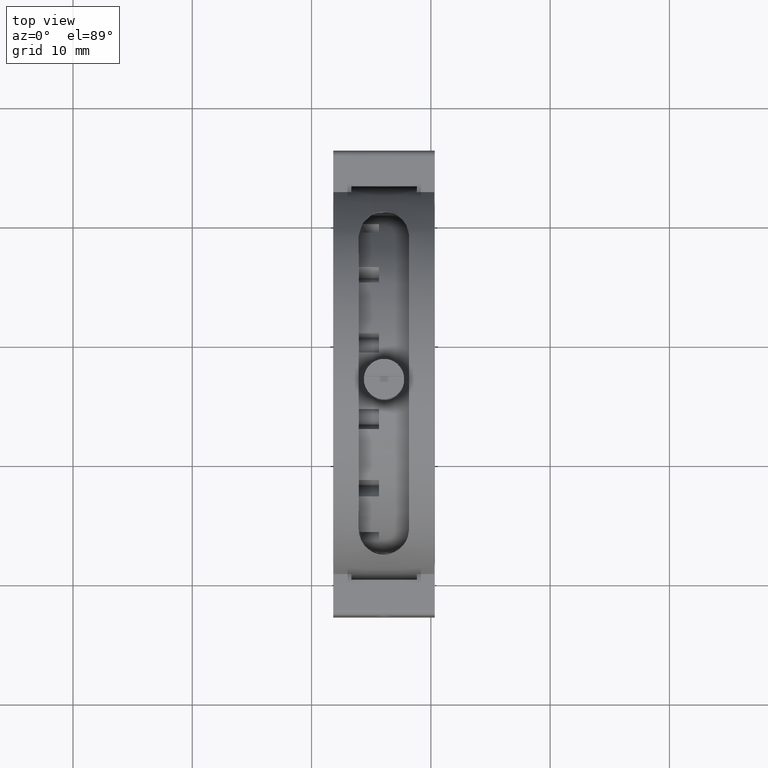
[diagram: clean part render]
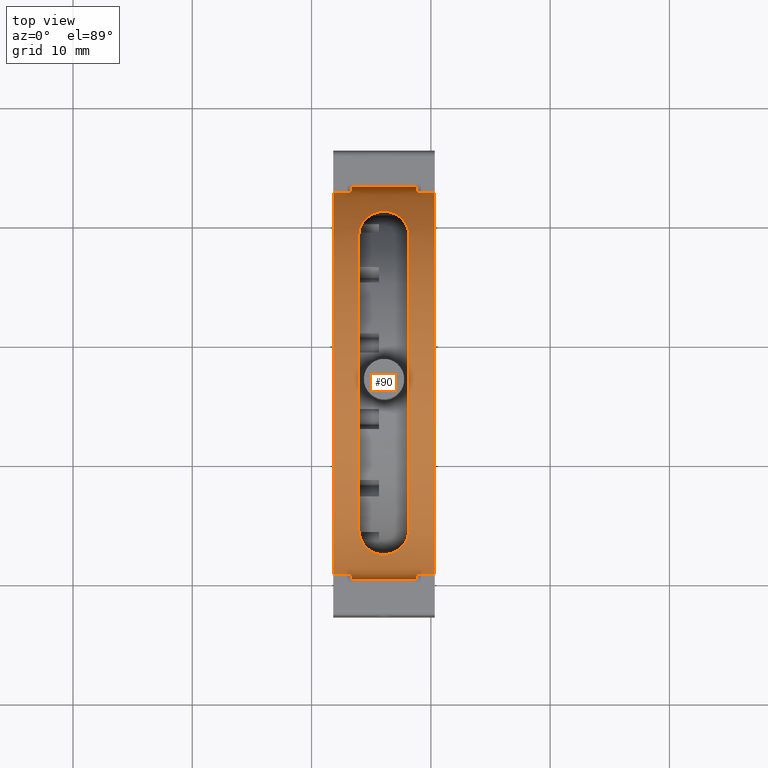
[diagram: same view with one face highlighted and labeled with its STEP entity id]
A machine part, top view. The second image highlights one B-rep face of the part: STEP entity #90.
In plain terms, the highlighted face is a freeform B-spline surface patch.
Its self-contained STEP definition (entity closure, byte-faithful):
#44=FACE_BOUND('',#755,.T.);
#90=ADVANCED_FACE('',(#412,#44),#5506,.T.);
#412=FACE_OUTER_BOUND('',#754,.T.);
#754=EDGE_LOOP('',(#1305,#1306,#1307,#1308,#1309,#1310,#1311,#1312,#1313,
#1314,#1315,#1316));
#755=EDGE_LOOP('',(#1317,#1318,#1319,#1320,#1321,#1322));
#1305=ORIENTED_EDGE('',*,*,#2918,.T.);
#1306=ORIENTED_EDGE('',*,*,#3012,.T.);
#1307=ORIENTED_EDGE('',*,*,#2933,.T.);
#1308=ORIENTED_EDGE('',*,*,#3013,.T.);
#1309=ORIENTED_EDGE('',*,*,#2965,.T.);
#1310=ORIENTED_EDGE('',*,*,#3014,.F.);
#1311=ORIENTED_EDGE('',*,*,#2929,.T.);
#1312=ORIENTED_EDGE('',*,*,#3015,.T.);
#1313=ORIENTED_EDGE('',*,*,#2922,.T.);
#1314=ORIENTED_EDGE('',*,*,#3016,.F.);
#1315=ORIENTED_EDGE('',*,*,#3011,.T.);
#1316=ORIENTED_EDGE('',*,*,#3017,.T.);
#1317=ORIENTED_EDGE('',*,*,#3023,.T.);
#1318=ORIENTED_EDGE('',*,*,#3018,.T.);
#1319=ORIENTED_EDGE('',*,*,#3019,.T.);
#1320=ORIENTED_EDGE('',*,*,#3020,.T.);
#1321=ORIENTED_EDGE('',*,*,#3021,.T.);
#1322=ORIENTED_EDGE('',*,*,#3022,.T.);
#2918=EDGE_CURVE('',#4945,#4944,#4385,.T.);
#2922=EDGE_CURVE('',#4949,#4948,#4389,.T.);
#2929=EDGE_CURVE('',#4955,#4954,#4396,.T.);
#2933=EDGE_CURVE('',#4959,#4958,#4400,.T.);
#2965=EDGE_CURVE('',#4965,#4964,#4424,.T.);
#3011=EDGE_CURVE('',#5008,#4966,#4442,.T.);
#3012=EDGE_CURVE('',#4944,#4959,#3957,.T.);
#3013=EDGE_CURVE('',#4958,#4965,#3958,.T.);
#3014=EDGE_CURVE('',#4955,#4964,#3959,.T.);
#3015=EDGE_CURVE('',#4954,#4949,#3960,.T.);
#3016=EDGE_CURVE('',#5008,#4948,#3961,.T.);
#3017=EDGE_CURVE('',#4966,#4945,#3962,.T.);
#3018=EDGE_CURVE('',#5040,#5041,#3963,.T.);
#3019=EDGE_CURVE('',#5041,#5042,#4443,.T.);
#3020=EDGE_CURVE('',#5042,#5043,#4444,.T.);
#3021=EDGE_CURVE('',#5043,#5044,#3964,.T.);
#3022=EDGE_CURVE('',#5044,#5045,#4445,.T.);
#3023=EDGE_CURVE('',#5045,#5040,#4446,.T.);
#3957=(
BOUNDED_CURVE()
B_SPLINE_CURVE(2,(#9861,#9862,#9863,#9864,#9865),.UNSPECIFIED.,.F.,.F.)
B_SPLINE_CURVE_WITH_KNOTS((3,2,3),(-43.7557715954461,-21.877885797723,0.),
 .UNSPECIFIED.)
CURVE()
GEOMETRIC_REPRESENTATION_ITEM()
RATIONAL_B_SPLINE_CURVE((1.,0.788170109311512,1.,0.788170109311512,1.))
REPRESENTATION_ITEM('')
);
#3958=(
BOUNDED_CURVE()
B_SPLINE_CURVE(2,(#9866,#9867,#9868),.UNSPECIFIED.,.F.,.F.)
B_SPLINE_CURVE_WITH_KNOTS((3,3),(0.,4.04025359439275),.UNSPECIFIED.)
CURVE()
GEOMETRIC_REPRESENTATION_ITEM()
RATIONAL_B_SPLINE_CURVE((1.,0.992514568911957,1.))
REPRESENTATION_ITEM('')
);
#3959=(
BOUNDED_CURVE()
B_SPLINE_CURVE(2,(#9869,#9870,#9871),.UNSPECIFIED.,.F.,.F.)
B_SPLINE_CURVE_WITH_KNOTS((3,3),(-4.04025359439275,0.),.UNSPECIFIED.)
CURVE()
GEOMETRIC_REPRESENTATION_ITEM()
RATIONAL_B_SPLINE_CURVE((1.,0.992514568911957,1.))
REPRESENTATION_ITEM('')
);
#3960=(
BOUNDED_CURVE()
B_SPLINE_CURVE(2,(#9872,#9873,#9874,#9875,#9876),.UNSPECIFIED.,.F.,.F.)
B_SPLINE_CURVE_WITH_KNOTS((3,2,3),(-43.7557715954461,-21.877885797723,0.),
 .UNSPECIFIED.)
CURVE()
GEOMETRIC_REPRESENTATION_ITEM()
RATIONAL_B_SPLINE_CURVE((1.,0.788170109311512,1.,0.788170109311512,1.))
REPRESENTATION_ITEM('')
);
#3961=(
BOUNDED_CURVE()
B_SPLINE_CURVE(2,(#9877,#9878,#9879),.UNSPECIFIED.,.F.,.F.)
B_SPLINE_CURVE_WITH_KNOTS((3,3),(-4.04025359439275,0.),.UNSPECIFIED.)
CURVE()
GEOMETRIC_REPRESENTATION_ITEM()
RATIONAL_B_SPLINE_CURVE((1.,0.992514568911957,1.))
REPRESENTATION_ITEM('')
);
#3962=(
BOUNDED_CURVE()
B_SPLINE_CURVE(2,(#9880,#9881,#9882),.UNSPECIFIED.,.F.,.F.)
B_SPLINE_CURVE_WITH_KNOTS((3,3),(0.,4.04025359439275),.UNSPECIFIED.)
CURVE()
GEOMETRIC_REPRESENTATION_ITEM()
RATIONAL_B_SPLINE_CURVE((1.,0.992514568911958,1.))
REPRESENTATION_ITEM('')
);
#3963=(
BOUNDED_CURVE()
B_SPLINE_CURVE(2,(#9883,#9884,#9885,#9886,#9887),.UNSPECIFIED.,.F.,.F.)
B_SPLINE_CURVE_WITH_KNOTS((3,2,3),(0.,13.8339829053415,27.6679658106831),
 .UNSPECIFIED.)
CURVE()
GEOMETRIC_REPRESENTATION_ITEM()
RATIONAL_B_SPLINE_CURVE((1.,0.913410133544442,1.,0.913410133544442,1.))
REPRESENTATION_ITEM('')
);
#3964=(
BOUNDED_CURVE()
B_SPLINE_CURVE(2,(#9916,#9917,#9918,#9919,#9920),.UNSPECIFIED.,.F.,.F.)
B_SPLINE_CURVE_WITH_KNOTS((3,2,3),(0.,13.8339829053415,27.6679658106831),
 .UNSPECIFIED.)
CURVE()
GEOMETRIC_REPRESENTATION_ITEM()
RATIONAL_B_SPLINE_CURVE((1.,0.913410133544442,1.,0.913410133544442,1.))
REPRESENTATION_ITEM('')
);
#4385=B_SPLINE_CURVE_WITH_KNOTS('',1,(#9605,#9606),.UNSPECIFIED.,.F.,.F.,
(2,2),(0.,1.49615384615385),.UNSPECIFIED.);
#4389=B_SPLINE_CURVE_WITH_KNOTS('',1,(#9613,#9614),.UNSPECIFIED.,.F.,.F.,
(2,2),(0.,1.46538461538461),.UNSPECIFIED.);
#4396=B_SPLINE_CURVE_WITH_KNOTS('',1,(#9627,#9628),.UNSPECIFIED.,.F.,.F.,
(2,2),(0.,1.46538461538462),.UNSPECIFIED.);
#4400=B_SPLINE_CURVE_WITH_KNOTS('',1,(#9635,#9636),.UNSPECIFIED.,.F.,.F.,
(2,2),(0.,1.49615384615385),.UNSPECIFIED.);
#4424=B_SPLINE_CURVE_WITH_KNOTS('',1,(#9707,#9708),.UNSPECIFIED.,.F.,.F.,
(2,2),(-5.5,0.),.UNSPECIFIED.);
#4442=B_SPLINE_CURVE_WITH_KNOTS('',1,(#9859,#9860),.UNSPECIFIED.,.F.,.F.,
(2,2),(0.,5.5),.UNSPECIFIED.);
#4443=B_SPLINE_CURVE_WITH_KNOTS('',3,(#9888,#9889,#9890,#9891,#9892,#9893,
#9894,#9895,#9896,#9897,#9898,#9899,#9900,#9901),.UNSPECIFIED.,.F.,.F.,
(4,2,2,2,2,2,4),(-0.743787723429557,-0.735675025717153,-0.727562328004749,
-0.711336932579941,-0.678994371539949,-0.614309629255072,-0.484859846165475),
 .UNSPECIFIED.);
#4444=B_SPLINE_CURVE_WITH_KNOTS('',3,(#9902,#9903,#9904,#9905,#9906,#9907,
#9908,#9909,#9910,#9911,#9912,#9913,#9914,#9915),.UNSPECIFIED.,.F.,.F.,
(4,2,2,2,2,2,4),(-0.484859846165475,-0.355410438512763,-0.290724871441666,
-0.258382341752588,-0.242157155326991,-0.234044562114192,-0.225931968901393),
 .UNSPECIFIED.);
#4445=B_SPLINE_CURVE_WITH_KNOTS('',3,(#9921,#9922,#9923,#9924,#9925,#9926,
#9927,#9928,#9929,#9930,#9931,#9932,#9933,#9934),.UNSPECIFIED.,.F.,.F.,
(4,2,2,2,2,2,4),(-0.258927877264082,-0.250815179551674,-0.242702481839266,
-0.226477086414449,-0.194134525374459,-0.129449783089587,0.),
 .UNSPECIFIED.);
#4446=B_SPLINE_CURVE_WITH_KNOTS('',3,(#9935,#9936,#9937,#9938,#9939,#9940,
#9941,#9942,#9943,#9944,#9945,#9946,#9947,#9948),.UNSPECIFIED.,.F.,.F.,
(4,2,2,2,2,2,4),(0.,0.12944940765271,0.194134974723805,0.226477504412881,
0.242702690838482,0.250815284051282,0.258927877264082),.UNSPECIFIED.);
#4944=VERTEX_POINT('',#9017);
#4945=VERTEX_POINT('',#9018);
#4948=VERTEX_POINT('',#9021);
#4949=VERTEX_POINT('',#9022);
#4954=VERTEX_POINT('',#9027);
#4955=VERTEX_POINT('',#9028);
#4958=VERTEX_POINT('',#9031);
#4959=VERTEX_POINT('',#9032);
#4964=VERTEX_POINT('',#9037);
#4965=VERTEX_POINT('',#9038);
#4966=VERTEX_POINT('',#9039);
#5008=VERTEX_POINT('',#9081);
#5040=VERTEX_POINT('',#9113);
#5041=VERTEX_POINT('',#9114);
#5042=VERTEX_POINT('',#9115);
#5043=VERTEX_POINT('',#9116);
#5044=VERTEX_POINT('',#9117);
#5045=VERTEX_POINT('',#9118);
#5506=(
BOUNDED_SURFACE()
B_SPLINE_SURFACE(2,1,((#6558,#6559),(#6560,#6561),(#6562,#6563),(#6564,
#6565),(#6566,#6567),(#6568,#6569),(#6570,#6571),(#6572,#6573),(#6574,#6575)),
 .UNSPECIFIED.,.T.,.F.,.F.)
B_SPLINE_SURFACE_WITH_KNOTS((3,2,2,2,3),(2,2),(0.,1.5707963267949,3.14159265358979,
4.71238898038469,6.28318530717959),(0.,10.3938461538462),.UNSPECIFIED.)
GEOMETRIC_REPRESENTATION_ITEM()
RATIONAL_B_SPLINE_SURFACE(((1.,1.),(0.707106781186548,0.707106781186548),
(1.,1.),(0.707106781186548,0.707106781186548),(1.,1.),(0.707106781186548,
0.707106781186548),(1.,1.),(0.707106781186548,0.707106781186548),(1.,1.)))
REPRESENTATION_ITEM('')
SURFACE()
);
#6558=CARTESIAN_POINT('',(21.2546153846154,16.5,-13.9767355977011));
#6559=CARTESIAN_POINT('',(10.8607692307692,16.5,-13.9767355977011));
#6560=CARTESIAN_POINT('',(21.2546153846154,3.5527136788005E-15,-13.9767355977011));
#6561=CARTESIAN_POINT('',(10.8607692307692,3.5527136788005E-15,-13.9767355977011));
#6562=CARTESIAN_POINT('',(21.2546153846154,0.,2.52326440229894));
#6563=CARTESIAN_POINT('',(10.8607692307692,0.,2.52326440229894));
#6564=CARTESIAN_POINT('',(21.2546153846154,0.,19.0232644022989));
#6565=CARTESIAN_POINT('',(10.8607692307692,0.,19.0232644022989));
#6566=CARTESIAN_POINT('',(21.2546153846154,16.5,19.0232644022989));
#6567=CARTESIAN_POINT('',(10.8607692307692,16.5,19.0232644022989));
#6568=CARTESIAN_POINT('',(21.2546153846154,33.,19.0232644022989));
#6569=CARTESIAN_POINT('',(10.8607692307692,33.,19.0232644022989));
#6570=CARTESIAN_POINT('',(21.2546153846154,33.,2.52326440229895));
#6571=CARTESIAN_POINT('',(10.8607692307692,33.,2.52326440229895));
#6572=CARTESIAN_POINT('',(21.2546153846154,33.,-13.976735597701));
#6573=CARTESIAN_POINT('',(10.8607692307692,33.,-13.976735597701));
#6574=CARTESIAN_POINT('',(21.2546153846154,16.5,-13.9767355977011));
#6575=CARTESIAN_POINT('',(10.8607692307692,16.5,-13.9767355977011));
#9017=CARTESIAN_POINT('',(11.826923076923,32.5078105935821,6.52326440229894));
#9018=CARTESIAN_POINT('',(13.3230769230769,32.5078105935821,6.52326440229894));
#9021=CARTESIAN_POINT('',(18.8230769230769,32.5078105935821,6.52326440229895));
#9022=CARTESIAN_POINT('',(20.2884615384615,32.5078105935821,6.52326440229895));
#9027=CARTESIAN_POINT('',(20.2884615384615,0.492189406417881,6.52326440229894));
#9028=CARTESIAN_POINT('',(18.8230769230769,0.49218940641788,6.52326440229894));
#9031=CARTESIAN_POINT('',(13.3230769230769,0.492189406417879,6.52326440229894));
#9032=CARTESIAN_POINT('',(11.826923076923,0.492189406417883,6.52326440229894));
#9037=CARTESIAN_POINT('',(18.8230769230769,5.47023555514279E-15,2.52326440229894));
#9038=CARTESIAN_POINT('',(13.3230769230769,5.73111696057652E-15,2.52326440229894));
#9039=CARTESIAN_POINT('',(13.3230769230769,33.,2.52326440229894));
#9081=CARTESIAN_POINT('',(18.8230769230769,33.,2.52326440229894));
#9113=CARTESIAN_POINT('',(13.9423076923077,4.14500821754125,13.4596339121215));
#9114=CARTESIAN_POINT('',(13.9423076923077,28.6827218702852,13.6512151494615));
#9115=CARTESIAN_POINT('',(16.0576923076923,30.8210708585029,10.7181975603997));
#9116=CARTESIAN_POINT('',(18.1730769230769,28.6827218702852,13.6512151494615));
#9117=CARTESIAN_POINT('',(18.1730769230769,4.14500821754125,13.4596339121215));
#9118=CARTESIAN_POINT('',(16.0576923076923,2.05271692080312,10.4935850752425));
#9605=CARTESIAN_POINT('',(13.3230769230769,32.5078105935821,6.52326440229894));
#9606=CARTESIAN_POINT('',(11.826923076923,32.5078105935821,6.52326440229894));
#9613=CARTESIAN_POINT('',(20.2884615384615,32.5078105935821,6.52326440229895));
#9614=CARTESIAN_POINT('',(18.8230769230769,32.5078105935821,6.52326440229895));
#9627=CARTESIAN_POINT('',(18.8230769230769,0.49218940641788,6.52326440229894));
#9628=CARTESIAN_POINT('',(20.2884615384615,0.492189406417881,6.52326440229894));
#9635=CARTESIAN_POINT('',(11.826923076923,0.492189406417883,6.52326440229894));
#9636=CARTESIAN_POINT('',(13.3230769230769,0.492189406417879,6.52326440229894));
#9707=CARTESIAN_POINT('',(13.3230769230769,5.73111696057652E-15,2.52326440229894));
#9708=CARTESIAN_POINT('',(18.8230769230769,5.47023555514279E-15,2.52326440229894));
#9859=CARTESIAN_POINT('',(18.8230769230769,33.,2.52326440229894));
#9860=CARTESIAN_POINT('',(13.3230769230769,33.,2.52326440229894));
#9861=CARTESIAN_POINT('',(11.826923076923,32.5078105935821,6.52326440229895));
#9862=CARTESIAN_POINT('',(11.826923076923,29.38433535581,19.0232644022989));
#9863=CARTESIAN_POINT('',(11.826923076923,16.5,19.0232644022989));
#9864=CARTESIAN_POINT('',(11.826923076923,3.61566464419,19.0232644022989));
#9865=CARTESIAN_POINT('',(11.8269230769231,0.492189406417886,6.52326440229894));
#9866=CARTESIAN_POINT('',(13.3230769230769,0.492189406417875,6.52326440229894));
#9867=CARTESIAN_POINT('',(13.3230769230769,-9.6059448622706E-15,4.55354570377269));
#9868=CARTESIAN_POINT('',(13.3230769230769,5.55111512312578E-15,2.52326440229894));
#9869=CARTESIAN_POINT('',(18.8230769230769,0.492189406417879,6.52326440229894));
#9870=CARTESIAN_POINT('',(18.8230769230769,-2.50285899613746E-15,4.55354570377269));
#9871=CARTESIAN_POINT('',(18.8230769230769,4.88498130835069E-15,2.52326440229894));
#9872=CARTESIAN_POINT('',(20.2884615384615,0.492189406417886,6.52326440229894));
#9873=CARTESIAN_POINT('',(20.2884615384615,3.61566464419001,19.0232644022989));
#9874=CARTESIAN_POINT('',(20.2884615384615,16.5,19.0232644022989));
#9875=CARTESIAN_POINT('',(20.2884615384615,29.38433535581,19.0232644022989));
#9876=CARTESIAN_POINT('',(20.2884615384615,32.5078105935821,6.52326440229895));
#9877=CARTESIAN_POINT('',(18.8230769230769,33.,2.52326440229894));
#9878=CARTESIAN_POINT('',(18.8230769230769,33.,4.55354570377269));
#9879=CARTESIAN_POINT('',(18.8230769230769,32.5078105935821,6.52326440229895));
#9880=CARTESIAN_POINT('',(13.3230769230769,33.,2.52326440229894));
#9881=CARTESIAN_POINT('',(13.3230769230769,33.,4.55354570377269));
#9882=CARTESIAN_POINT('',(13.3230769230769,32.5078105935821,6.52326440229894));
#9883=CARTESIAN_POINT('',(13.9423076923077,4.14500821754125,13.4596339121215));
#9884=CARTESIAN_POINT('',(13.9423076923077,9.01855253590675,18.9653549789503));
#9885=CARTESIAN_POINT('',(13.9423076923077,16.3711781335128,19.0227615136268));
#9886=CARTESIAN_POINT('',(13.9423076923077,23.7238037311188,19.0801680483032));
#9887=CARTESIAN_POINT('',(13.9423076923077,28.6827218702852,13.6512151494615));
#9888=CARTESIAN_POINT('',(13.9423076923077,28.6827218702852,13.6512151494615));
#9889=CARTESIAN_POINT('',(13.9423076923077,28.9609971286799,13.3465633628539));
#9890=CARTESIAN_POINT('',(13.9697398506385,29.0368590008087,13.251709914202));
#9891=CARTESIAN_POINT('',(14.0108898136201,29.2293098044846,13.0226476513037));
#9892=CARTESIAN_POINT('',(14.0322868524658,29.301738976914,12.933648186254));
#9893=CARTESIAN_POINT('',(14.0969115555564,29.4952143340237,12.69267194954));
#9894=CARTESIAN_POINT('',(14.1409169685126,29.5911087885584,12.5678020040475));
#9895=CARTESIAN_POINT('',(14.2728626648993,29.8450601307904,12.2309057609646));
#9896=CARTESIAN_POINT('',(14.3614417733405,29.9667819980351,12.0589763508796));
#9897=CARTESIAN_POINT('',(14.6278454477819,30.2814765577493,11.603847053532));
#9898=CARTESIAN_POINT('',(14.8061720334941,30.4185206071961,11.3869818629558));
#9899=CARTESIAN_POINT('',(15.3419895136578,30.7374996343782,10.8723133779348));
#9900=CARTESIAN_POINT('',(15.6995421843424,30.8210708585029,10.7181975603997));
#9901=CARTESIAN_POINT('',(16.0576923076923,30.8210708585029,10.7181975603997));
#9902=CARTESIAN_POINT('',(16.0576923076923,30.8210708585029,10.7181975603997));
#9903=CARTESIAN_POINT('',(16.4158402966789,30.8210708585029,10.7181975603997));
#9904=CARTESIAN_POINT('',(16.7733908283647,30.7375004775464,10.8723116822072));
#9905=CARTESIAN_POINT('',(17.3092079319938,30.4185242252118,11.3869761928724));
#9906=CARTESIAN_POINT('',(17.4875362496465,30.2814796627245,11.6038424657279));
#9907=CARTESIAN_POINT('',(17.753941296773,29.9667839943726,12.0589735122667));
#9908=CARTESIAN_POINT('',(17.8425200489982,29.8450628455965,12.2309019568613));
#9909=CARTESIAN_POINT('',(17.9744647120685,29.5911149110912,12.5677939834207));
#9910=CARTESIAN_POINT('',(18.0184693925881,29.4952225619443,12.6926612949158));
#9911=CARTESIAN_POINT('',(18.0830932010686,29.3017540096984,12.9336296660003));
#9912=CARTESIAN_POINT('',(18.1045047942204,29.229179426046,13.0228020411122));
#9913=CARTESIAN_POINT('',(18.1456224169845,29.0370617484956,13.2514693874648));
#9914=CARTESIAN_POINT('',(18.1730769230769,28.961136889223,13.3464103550033));
#9915=CARTESIAN_POINT('',(18.1730769230769,28.6827218702852,13.6512151494615));
#9916=CARTESIAN_POINT('',(18.1730769230769,28.6827218702852,13.6512151494615));
#9917=CARTESIAN_POINT('',(18.1730769230769,23.7238037311188,19.0801680483032));
#9918=CARTESIAN_POINT('',(18.1730769230769,16.3711781335128,19.0227615136268));
#9919=CARTESIAN_POINT('',(18.1730769230769,9.01855253590675,18.9653549789503));
#9920=CARTESIAN_POINT('',(18.1730769230769,4.14500821754125,13.4596339121215));
#9921=CARTESIAN_POINT('',(18.1730769230769,4.14500821754125,13.4596339121215));
#9922=CARTESIAN_POINT('',(18.1730769230769,3.87152380694375,13.1506741935853));
#9923=CARTESIAN_POINT('',(18.145644764746,3.797152252981,13.054647778859));
#9924=CARTESIAN_POINT('',(18.1044948017644,3.60830155701431,12.8226084572934));
#9925=CARTESIAN_POINT('',(18.0830977629188,3.53727087843719,12.7324889116954));
#9926=CARTESIAN_POINT('',(18.0184730598281,3.34758178225193,12.488521071073));
#9927=CARTESIAN_POINT('',(17.974467646872,3.25364877452651,12.3621690241666));
#9928=CARTESIAN_POINT('',(17.8425219504853,3.00498878923062,12.021348580916));
#9929=CARTESIAN_POINT('',(17.753942842044,2.88596631782885,11.8475395296006));
#9930=CARTESIAN_POINT('',(17.4875391676026,2.5784166461708,11.387551983377));
#9931=CARTESIAN_POINT('',(17.3092125818905,2.44477550107057,11.168573384631));
#9932=CARTESIAN_POINT('',(16.7733951017267,2.13387154675367,10.6489870102466));
#9933=CARTESIAN_POINT('',(16.4158424310421,2.05271692080312,10.4935850752425));
#9934=CARTESIAN_POINT('',(16.0576923076923,2.05271692080312,10.4935850752425));
#9935=CARTESIAN_POINT('',(16.0576923076923,2.05271692080312,10.4935850752425));
#9936=CARTESIAN_POINT('',(15.6995443187057,2.05271692080312,10.4935850752425));
#9937=CARTESIAN_POINT('',(15.3419937870198,2.13387073016582,10.6489853015602));
#9938=CARTESIAN_POINT('',(14.8061766833907,2.44477197203033,11.168567658746));
#9939=CARTESIAN_POINT('',(14.627848365738,2.57841361320944,11.3875473476501));
#9940=CARTESIAN_POINT('',(14.3614433186116,2.88596436605766,11.8475366601623));
#9941=CARTESIAN_POINT('',(14.2728645663864,3.00498613415379,12.0213447348867));
#9942=CARTESIAN_POINT('',(14.140919903316,3.2536427779765,12.3621609089185));
#9943=CARTESIAN_POINT('',(14.0969152227964,3.34757372169881,12.4885102892745));
#9944=CARTESIAN_POINT('',(14.032291414316,3.53725613666616,12.7324701589731));
#9945=CARTESIAN_POINT('',(14.0108798211642,3.60842950887033,12.8227648640478));
#9946=CARTESIAN_POINT('',(13.9697621984001,3.79695328566669,13.0544041156821));
#9947=CARTESIAN_POINT('',(13.9423076923077,3.87138645254867,13.1505190221255));
#9948=CARTESIAN_POINT('',(13.9423076923077,4.14500821754125,13.4596339121215));